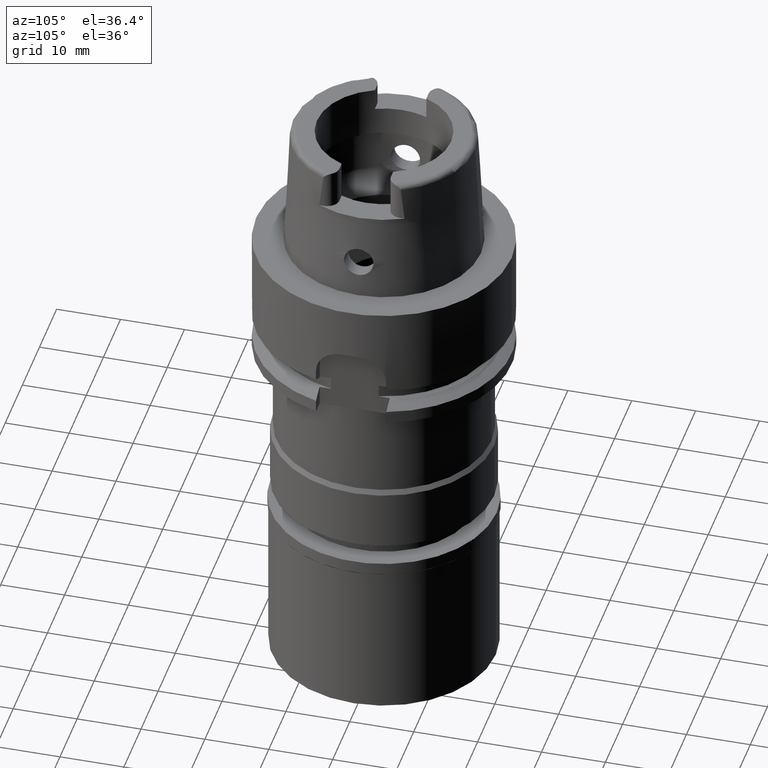
[diagram: clean part render]
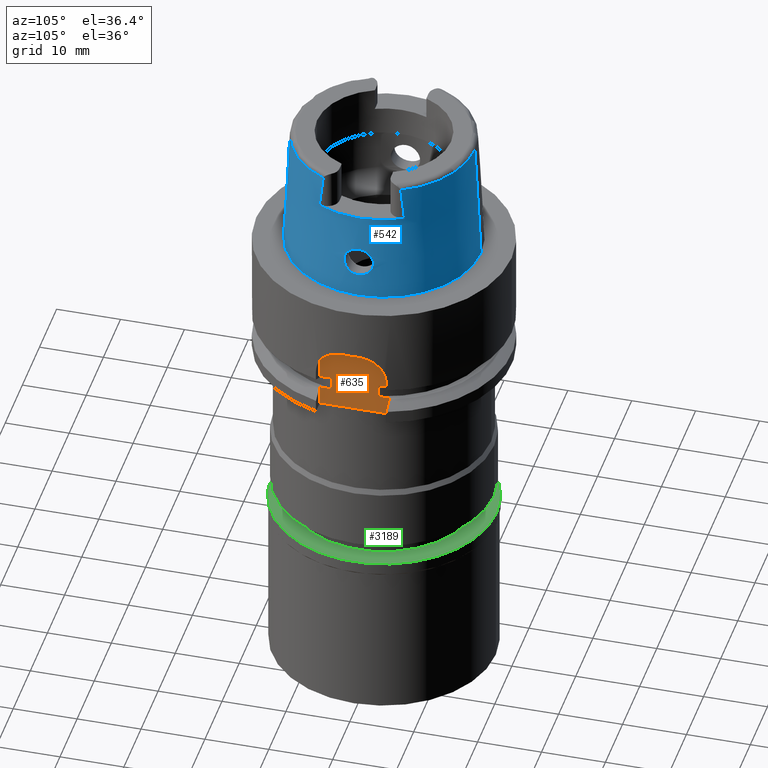
[diagram: same view with three faces highlighted in distinct colors, each labeled with its STEP entity id]
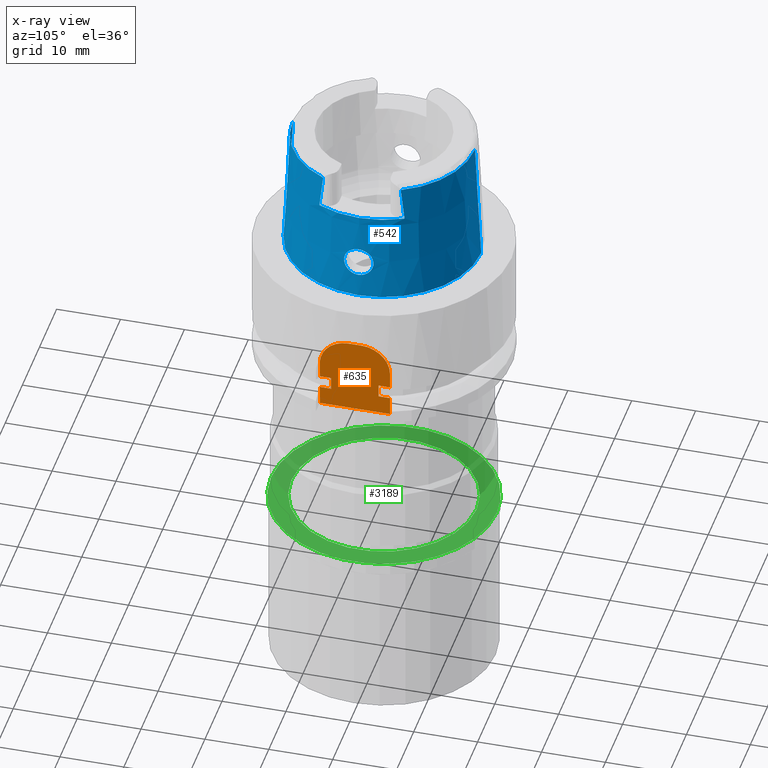
[diagram: x-ray of the same camera — body ghosted, the three highlighted faces saturated]
A machine part, auxiliary view with three faces highlighted in distinct colors.
The next image is the same camera in x-ray (body ghosted, the three faces saturated) — at least one of them is partly hidden behind the body in this view.
Their STEP definitions:

[orange] entity #635 — the highlighted planar face has unit normal (1, 0, 0).
#101 = VECTOR ( 'NONE', #1894, 1000.000000000000000 ) ;
#105 = EDGE_CURVE ( 'NONE', #713, #2883, #1663, .T. ) ;
#151 = CARTESIAN_POINT ( 'NONE',  ( 17.00000000000000000, 5.500000000000000000, -20.00000000000000000 ) ) ;
#152 = CIRCLE ( 'NONE', #4586, 4.500000000000000000 ) ;
#164 = VECTOR ( 'NONE', #1248, 1000.000000000000000 ) ;
#165 = ORIENTED_EDGE ( 'NONE', *, *, #4845, .F. ) ;
#181 = CARTESIAN_POINT ( 'NONE',  ( 17.00000000000000000, 5.500000000000000000, -15.00000000000000000 ) ) ;
#245 = VECTOR ( 'NONE', #2984, 1000.000000000000000 ) ;
#298 = LINE ( 'NONE', #322, #4198 ) ;
#310 = VECTOR ( 'NONE', #2494, 1000.000000000000000 ) ;
#322 = CARTESIAN_POINT ( 'NONE',  ( 17.00000000000000000, 5.500000000000000000, -17.00000000000000000 ) ) ;
#396 = CARTESIAN_POINT ( 'NONE',  ( 17.00000000000000000, 5.500000000000000000, -15.00000000000000000 ) ) ;
#467 = PLANE ( 'NONE',  #1408 ) ;
#499 = VERTEX_POINT ( 'NONE', #2851 ) ;
#530 = VECTOR ( 'NONE', #5295, 1000.000000000000000 ) ;
#583 = DIRECTION ( 'NONE',  ( 0.0000000000000000000, 0.0000000000000000000, -1.000000000000000000 ) ) ;
#612 = LINE ( 'NONE', #151, #101 ) ;
#635 = ADVANCED_FACE ( 'NONE', ( #4558 ), #467, .T. ) ;
#694 = EDGE_CURVE ( 'NONE', #5090, #1585, #3049, .T. ) ;
#713 = VERTEX_POINT ( 'NONE', #2965 ) ;
#725 = EDGE_CURVE ( 'NONE', #4905, #2472, #5182, .T. ) ;
#753 = DIRECTION ( 'NONE',  ( 0.0000000000000000000, 3.796962744218000027E-14, 1.000000000000000000 ) ) ;
#836 = DIRECTION ( 'NONE',  ( 0.0000000000000000000, -1.000000000000000000, 0.0000000000000000000 ) ) ;
#839 = ORIENTED_EDGE ( 'NONE', *, *, #921, .T. ) ;
#921 = EDGE_CURVE ( 'NONE', #4905, #713, #298, .T. ) ;
#973 = DIRECTION ( 'NONE',  ( 0.0000000000000000000, 1.000000000000000000, 0.0000000000000000000 ) ) ;
#1036 = EDGE_CURVE ( 'NONE', #3135, #4332, #1073, .T. ) ;
#1055 = ORIENTED_EDGE ( 'NONE', *, *, #2441, .F. ) ;
#1073 = LINE ( 'NONE', #3635, #530 ) ;
#1130 = EDGE_CURVE ( 'NONE', #3236, #3135, #4527, .T. ) ;
#1137 = EDGE_CURVE ( 'NONE', #5010, #2475, #152, .T. ) ;
#1148 = DIRECTION ( 'NONE',  ( 0.0000000000000000000, -1.000000000000000000, 0.0000000000000000000 ) ) ;
#1225 = CARTESIAN_POINT ( 'NONE',  ( 17.00000000000000000, -3.709447398197999846, -15.00000000000000000 ) ) ;
#1226 = CARTESIAN_POINT ( 'NONE',  ( 17.00000000000000000, -1.000000000000000000, -12.50000000000000000 ) ) ;
#1248 = DIRECTION ( 'NONE',  ( 0.0000000000000000000, 0.0000000000000000000, 1.000000000000000000 ) ) ;
#1263 = CARTESIAN_POINT ( 'NONE',  ( 17.00000000000000000, -3.709447398197999846, -15.00000000000000000 ) ) ;
#1349 = LINE ( 'NONE', #1225, #2252 ) ;
#1369 = CARTESIAN_POINT ( 'NONE',  ( 17.00000000000000000, 1.000000000000000000, -12.50000000000000000 ) ) ;
#1380 = LINE ( 'NONE', #3032, #2075 ) ;
#1408 = AXIS2_PLACEMENT_3D ( 'NONE', #4159, #3396, #2071 ) ;
#1420 = CARTESIAN_POINT ( 'NONE',  ( 17.00000000000000000, 3.709447398197999846, -15.00000000000000000 ) ) ;
#1585 = VERTEX_POINT ( 'NONE', #2547 ) ;
#1630 = DIRECTION ( 'NONE',  ( -1.000000000000000000, 0.0000000000000000000, 0.0000000000000000000 ) ) ;
#1643 = ORIENTED_EDGE ( 'NONE', *, *, #2448, .F. ) ;
#1663 = LINE ( 'NONE', #4067, #4968 ) ;
#1719 = LINE ( 'NONE', #2179, #245 ) ;
#1757 = VERTEX_POINT ( 'NONE', #396 ) ;
#1823 = CARTESIAN_POINT ( 'NONE',  ( 17.00000000000000000, 5.500000000000000000, -17.00000000000000000 ) ) ;
#1852 = DIRECTION ( 'NONE',  ( 0.0000000000000000000, -1.000000000000000000, 0.0000000000000000000 ) ) ;
#1894 = DIRECTION ( 'NONE',  ( 0.0000000000000000000, -1.000000000000000000, 0.0000000000000000000 ) ) ;
#2071 = DIRECTION ( 'NONE',  ( 0.0000000000000000000, 1.000000000000000000, 0.0000000000000000000 ) ) ;
#2075 = VECTOR ( 'NONE', #973, 1000.000000000000000 ) ;
#2091 = VECTOR ( 'NONE', #1852, 1000.000000000000000 ) ;
#2101 = ORIENTED_EDGE ( 'NONE', *, *, #3436, .F. ) ;
#2179 = CARTESIAN_POINT ( 'NONE',  ( 17.00000000000000000, -5.500000000000000000, -15.00000000000000000 ) ) ;
#2197 = EDGE_CURVE ( 'NONE', #3236, #5034, #1349, .T. ) ;
#2252 = VECTOR ( 'NONE', #3596, 1000.000000000000000 ) ;
#2349 = VECTOR ( 'NONE', #583, 1000.000000000000000 ) ;
#2426 = DIRECTION ( 'NONE',  ( 0.0000000000000000000, 0.0000000000000000000, -1.000000000000000000 ) ) ;
#2441 = EDGE_CURVE ( 'NONE', #499, #4332, #5087, .T. ) ;
#2448 = EDGE_CURVE ( 'NONE', #5034, #5010, #1719, .T. ) ;
#2472 = VERTEX_POINT ( 'NONE', #3767 ) ;
#2475 = VERTEX_POINT ( 'NONE', #4607 ) ;
#2494 = DIRECTION ( 'NONE',  ( 0.0000000000000000000, -3.730349362740999923E-14, -1.000000000000000000 ) ) ;
#2547 = CARTESIAN_POINT ( 'NONE',  ( 17.00000000000000000, 5.500000000000000000, -12.50000000000000000 ) ) ;
#2589 = ORIENTED_EDGE ( 'NONE', *, *, #1036, .T. ) ;
#2650 = DIRECTION ( 'NONE',  ( 0.0000000000000000000, 0.0000000000000000000, 1.000000000000000000 ) ) ;
#2726 = ORIENTED_EDGE ( 'NONE', *, *, #1130, .T. ) ;
#2783 = AXIS2_PLACEMENT_3D ( 'NONE', #1369, #4360, #2650 ) ;
#2851 = CARTESIAN_POINT ( 'NONE',  ( 17.00000000000000000, -5.500000000000000000, -20.00000000000000000 ) ) ;
#2883 = VERTEX_POINT ( 'NONE', #1420 ) ;
#2965 = CARTESIAN_POINT ( 'NONE',  ( 17.00000000000000000, 3.709447398197999846, -17.00000000000000000 ) ) ;
#2984 = DIRECTION ( 'NONE',  ( 0.0000000000000000000, 0.0000000000000000000, 1.000000000000000000 ) ) ;
#3021 = CARTESIAN_POINT ( 'NONE',  ( 17.00000000000000000, 5.500000000000000000, -17.00000000000000000 ) ) ;
#3032 = CARTESIAN_POINT ( 'NONE',  ( 17.00000000000000000, -1.000000000000000000, -8.000000000000000000 ) ) ;
#3049 = CIRCLE ( 'NONE', #2783, 4.500000000000000888 ) ;
#3133 = EDGE_CURVE ( 'NONE', #1585, #1757, #4925, .T. ) ;
#3135 = VERTEX_POINT ( 'NONE', #3575 ) ;
#3181 = ORIENTED_EDGE ( 'NONE', *, *, #694, .F. ) ;
#3200 = ORIENTED_EDGE ( 'NONE', *, *, #1137, .F. ) ;
#3236 = VERTEX_POINT ( 'NONE', #1263 ) ;
#3328 = CARTESIAN_POINT ( 'NONE',  ( 17.00000000000000000, -3.709447398197999846, -15.00000000000000000 ) ) ;
#3354 = CARTESIAN_POINT ( 'NONE',  ( 17.00000000000000000, -5.500000000000000000, -20.00000000000000000 ) ) ;
#3361 = ORIENTED_EDGE ( 'NONE', *, *, #725, .F. ) ;
#3396 = DIRECTION ( 'NONE',  ( 1.000000000000000000, 0.0000000000000000000, 0.0000000000000000000 ) ) ;
#3436 = EDGE_CURVE ( 'NONE', #2475, #5090, #1380, .T. ) ;
#3575 = CARTESIAN_POINT ( 'NONE',  ( 17.00000000000000000, -3.709447398197999846, -17.00000000000000000 ) ) ;
#3596 = DIRECTION ( 'NONE',  ( 0.0000000000000000000, -1.000000000000000000, 0.0000000000000000000 ) ) ;
#3617 = CARTESIAN_POINT ( 'NONE',  ( 17.00000000000000000, 1.000000000000000000, -8.000000000000000000 ) ) ;
#3635 = CARTESIAN_POINT ( 'NONE',  ( 17.00000000000000000, -3.709447398197999846, -17.00000000000000000 ) ) ;
#3686 = CARTESIAN_POINT ( 'NONE',  ( 17.00000000000000000, -5.500000000000000000, -12.50000000000000000 ) ) ;
#3767 = CARTESIAN_POINT ( 'NONE',  ( 17.00000000000000000, 5.500000000000000000, -20.00000000000000000 ) ) ;
#3787 = CARTESIAN_POINT ( 'NONE',  ( 17.00000000000000000, -5.500000000000000000, -17.00000000000000000 ) ) ;
#3792 = ORIENTED_EDGE ( 'NONE', *, *, #2197, .F. ) ;
#4067 = CARTESIAN_POINT ( 'NONE',  ( 17.00000000000000000, 3.709447398197999846, -17.00000000000000000 ) ) ;
#4159 = CARTESIAN_POINT ( 'NONE',  ( 17.00000000000000000, 0.0000000000000000000, 0.0000000000000000000 ) ) ;
#4198 = VECTOR ( 'NONE', #1148, 1000.000000000000000 ) ;
#4303 = ORIENTED_EDGE ( 'NONE', *, *, #3133, .F. ) ;
#4332 = VERTEX_POINT ( 'NONE', #3787 ) ;
#4360 = DIRECTION ( 'NONE',  ( -1.000000000000000000, 0.0000000000000000000, 0.0000000000000000000 ) ) ;
#4429 = CARTESIAN_POINT ( 'NONE',  ( 17.00000000000000000, -5.500000000000000000, -15.00000000000000000 ) ) ;
#4517 = CARTESIAN_POINT ( 'NONE',  ( 17.00000000000000000, 5.500000000000000000, -12.50000000000000000 ) ) ;
#4527 = LINE ( 'NONE', #3328, #310 ) ;
#4558 = FACE_OUTER_BOUND ( 'NONE', #5350, .T. ) ;
#4586 = AXIS2_PLACEMENT_3D ( 'NONE', #1226, #1630, #836 ) ;
#4607 = CARTESIAN_POINT ( 'NONE',  ( 17.00000000000000000, -1.000000000000000000, -8.000000000000000000 ) ) ;
#4819 = EDGE_CURVE ( 'NONE', #1757, #2883, #5186, .T. ) ;
#4845 = EDGE_CURVE ( 'NONE', #2472, #499, #612, .T. ) ;
#4857 = ORIENTED_EDGE ( 'NONE', *, *, #4819, .F. ) ;
#4905 = VERTEX_POINT ( 'NONE', #1823 ) ;
#4925 = LINE ( 'NONE', #4517, #5149 ) ;
#4968 = VECTOR ( 'NONE', #753, 1000.000000000000000 ) ;
#5010 = VERTEX_POINT ( 'NONE', #3686 ) ;
#5034 = VERTEX_POINT ( 'NONE', #4429 ) ;
#5083 = ORIENTED_EDGE ( 'NONE', *, *, #105, .T. ) ;
#5087 = LINE ( 'NONE', #3354, #164 ) ;
#5090 = VERTEX_POINT ( 'NONE', #3617 ) ;
#5149 = VECTOR ( 'NONE', #2426, 1000.000000000000000 ) ;
#5182 = LINE ( 'NONE', #3021, #2349 ) ;
#5186 = LINE ( 'NONE', #181, #2091 ) ;
#5295 = DIRECTION ( 'NONE',  ( 0.0000000000000000000, -1.000000000000000000, 0.0000000000000000000 ) ) ;
#5350 = EDGE_LOOP ( 'NONE', ( #3361, #839, #5083, #4857, #4303, #3181, #2101, #3200, #1643, #3792, #2726, #2589, #1055, #165 ) ) ;

[blue] entity #542 — the highlighted conical surface has half-angle 2.862 deg.
#16 = CARTESIAN_POINT ( 'NONE',  ( 15.01216022001266204, 0.2893533664339249523, 3.713389601571200682 ) ) ;
#18 = B_SPLINE_CURVE_WITH_KNOTS ( 'NONE', 3,
 ( #47, #1333, #1360, #3046, #922, #5054, #2612, #1305, #4299, #2234, #892, #166, #2553, #546, #5023, #2210, #4237, #2146, #3881, #78, #142, #1809, #3472, #5142, #3907, #4733, #984, #2642, #3127, #5224, #2309, #5269, #4399, #2360, #1940, #3155, #3988, #241, #4016, #1913, #1012, #4834, #2288, #5249, #3580, #4447, #269, #654, #218, #1506, #1088, #5174, #1067, #2742, #1425, #4377, #4418, #2333, #2694, #677, #4853, #3938, #4812, #3503, #3605, #4760, #628, #1886, #363, #1527, #3177, #1116, #2765, #3554, #702, #4113, #1480, #2716, #3076, #2667, #4352, #600, #2259, #194, #1864, #3532, #3965, #5199, #1453, #3099, #4787, #1039, #821, #3785 ),
 .UNSPECIFIED., .F., .F.,
 ( 4, 2, 2, 1, 1, 1, 2, 2, 2, 2, 1, 1, 1, 2, 2, 2, 2, 2, 1, 1, 1, 2, 2, 2, 2, 1, 1, 2, 2, 2, 2, 2, 2, 2, 2, 1, 1, 2, 2, 2, 2, 1, 2, 2, 2, 1, 1, 2, 2, 2, 2, 1, 1, 2, 2, 4 ),
 ( 0.0000000000000000000, 0.06249999999998293032, 0.09374999999997439548, 0.1093749999999702321, 0.1171874999999683031, 0.1210937499999673456, 0.1230468749999668460, 0.1249999999999663602, 0.1562499999999568123, 0.1718749999999521771, 0.1796874999999499012, 0.1835937499999487910, 0.1855468749999482081, 0.1865234374999479583, 0.1874999999999476807, 0.2187499999999349964, 0.2343749999999285016, 0.2421874999999250877, 0.2460937499999238387, 0.2480468749999242828, 0.2490234374999245326, 0.2495117187499246436, 0.2499999999999247546, 0.3124999999999354960, 0.3437499999999409361, 0.3593749999999436562, 0.3671874999999447664, 0.3710937499999454880, 0.3749999999999462097, 0.4374999999999556466, 0.4687499999999604205, 0.4843749999999625855, 0.4999999999999648059, 0.5624999999999723554, 0.5937499999999761302, 0.6093749999999782396, 0.6171874999999791278, 0.6210937499999794609, 0.6249999999999797939, 0.6562499999999821254, 0.6718749999999830136, 0.6796874999999835687, 0.6835937499999837907, 0.6874999999999841238, 0.7187499999999864553, 0.7343749999999876765, 0.7421874999999883427, 0.7460937499999887867, 0.7499999999999891198, 0.8124999999999921174, 0.8437499999999936717, 0.8593749999999945599, 0.8671874999999948930, 0.8710937499999950040, 0.8749999999999951150, 1.000000000000000000 ),
 .UNSPECIFIED. ) ;
#44 = CARTESIAN_POINT ( 'NONE',  ( 14.76681639866726137, 0.8982602938157991934, 8.117343626126395151 ) ) ;
#47 = CARTESIAN_POINT ( 'NONE',  ( 14.78499286951999991, -6.894269632583999541E-14, 8.300000000000000711 ) ) ;
#78 = CARTESIAN_POINT ( 'NONE',  ( 14.74981004312974875, -1.264879403766588473, 7.920971887863505145 ) ) ;
#81 = CARTESIAN_POINT ( 'NONE',  ( 12.88000000000000078, 6.263607505038087275, 17.57638009051866490 ) ) ;
#107 = CARTESIAN_POINT ( 'NONE',  ( 14.72880436649974989, 1.632282589548259111, 7.620387441107694393 ) ) ;
#120 = ORIENTED_EDGE ( 'NONE', *, *, #2336, .F. ) ;
#142 = CARTESIAN_POINT ( 'NONE',  ( 14.74944605433966949, -1.271765335749679871, 7.916408241682860947 ) ) ;
#155 = DIRECTION ( 'NONE',  ( 0.0000000000000000000, 1.000000000000000000, 0.0000000000000000000 ) ) ;
#161 = CARTESIAN_POINT ( 'NONE',  ( 14.77912388158673451, 0.5828724287265009130, 8.248662636701936890 ) ) ;
#166 = CARTESIAN_POINT ( 'NONE',  ( 14.76759299913051215, -0.8784831073322352246, 8.125625232293302247 ) ) ;
#194 = CARTESIAN_POINT ( 'NONE',  ( 14.95142600020052193, -1.189400720846008008, 4.029957730038552732 ) ) ;
#205 = EDGE_CURVE ( 'NONE', #3020, #268, #18, .T. ) ;
#218 = CARTESIAN_POINT ( 'NONE',  ( 14.70731350600274290, -2.271682167272943698, 6.367492034530670253 ) ) ;
#241 = CARTESIAN_POINT ( 'NONE',  ( 14.71548110503575657, -1.856541437910898429, 7.365967832220531086 ) ) ;
#251 = DIRECTION ( 'NONE',  ( 0.8882768779220027167, 0.4593083802296007434, 0.0000000000000000000 ) ) ;
#268 = VERTEX_POINT ( 'NONE', #4950 ) ;
#269 = CARTESIAN_POINT ( 'NONE',  ( 14.70192438103251753, -2.185226659930438409, 6.733826559296766767 ) ) ;
#277 = CARTESIAN_POINT ( 'NONE',  ( 0.0000000000000000000, 14.23797715755999782, 19.23995141520000018 ) ) ;
#315 = CARTESIAN_POINT ( 'NONE',  ( 14.90604601449832245, 1.540016639564700140, 4.291546508878167465 ) ) ;
#359 = FACE_OUTER_BOUND ( 'NONE', #2563, .T. ) ;
#363 = CARTESIAN_POINT ( 'NONE',  ( 14.82861031471268554, -1.972228873648485870, 4.816477904920541064 ) ) ;
#371 = CARTESIAN_POINT ( 'NONE',  ( 14.87667241757650061, 1.724874992532658746, 4.476676304557067887 ) ) ;
#384 = ORIENTED_EDGE ( 'NONE', *, *, #4807, .T. ) ;
#399 = CARTESIAN_POINT ( 'NONE',  ( 14.90245068916599180, 1.564191699375925726, 4.313537692884594321 ) ) ;
#421 = EDGE_CURVE ( 'NONE', #3781, #4601, #5243, .T. ) ;
#424 = CARTESIAN_POINT ( 'NONE',  ( 14.98370197116996394, 0.8376729955598246624, 3.857945346696494138 ) ) ;
#442 = DIRECTION ( 'NONE',  ( 0.0000000000000000000, 0.0000000000000000000, -1.000000000000000000 ) ) ;
#453 = CARTESIAN_POINT ( 'NONE',  ( 14.70695021764856136, 2.017596499484052064, 7.114341090365945419 ) ) ;
#541 = CARTESIAN_POINT ( 'NONE',  ( 14.74496202010786838, 1.355094966164470893, 7.858489928149036352 ) ) ;
#542 = ADVANCED_FACE ( 'NONE', ( #359, #3334 ), #866, .T. ) ;
#546 = CARTESIAN_POINT ( 'NONE',  ( 14.76254693289290820, -1.002442225211846116, 8.071429003387009971 ) ) ;
#571 = CARTESIAN_POINT ( 'NONE',  ( 14.74875868047693217, 1.284731771883913742, 7.907740015181810911 ) ) ;
#600 = CARTESIAN_POINT ( 'NONE',  ( 14.91210813687733250, -1.507810433923086002, 4.254667527267774751 ) ) ;
#628 = CARTESIAN_POINT ( 'NONE',  ( 14.81755852585635758, -2.021971490311698094, 4.903164490583439949 ) ) ;
#654 = CARTESIAN_POINT ( 'NONE',  ( 14.70278707067030766, -2.228686593601409971, 6.587636899538245494 ) ) ;
#663 = CARTESIAN_POINT ( 'NONE',  ( 0.0000000000000000000, -14.23797715755999782, 19.23995141520000018 ) ) ;
#677 = CARTESIAN_POINT ( 'NONE',  ( 14.77765630244427797, -2.177347927596944288, 5.257069683184754538 ) ) ;
#701 = EDGE_CURVE ( 'NONE', #3620, #4939, #4532, .T. ) ;
#702 = CARTESIAN_POINT ( 'NONE',  ( 14.85768541107385587, -1.828951198433338199, 4.603345904347506234 ) ) ;
#728 = CARTESIAN_POINT ( 'NONE',  ( 15.01500049748000620, 0.1430751052744992091, 3.700000000000000622 ) ) ;
#743 = B_SPLINE_CURVE_WITH_KNOTS ( 'NONE', 3,
 ( #4476, #728, #16, #3231, #1687, #3703, #4087, #2382, #424, #2461, #3676, #4174, #4907, #777, #5363, #828, #2433, #315, #399, #2812, #3321, #4989, #2085, #371, #4930, #1983, #3653, #2008, #4573, #2895, #4547, #4496, #748, #2406, #5341, #2838, #2035, #1622, #3286, #4958, #1217, #2868, #804, #4727, #3846, #1832, #1386, #2606, #1777, #3440, #3467, #1356, #453, #916, #5080, #2116, #5136, #3038, #979, #2635, #3791, #4294, #107, #1713, #4693, #3817, #2171, #4260, #1327, #3413, #541, #2517, #4320, #3380, #3496, #571, #2228, #2205, #3876, #5110, #945, #2143, #3901, #44, #4663, #3004, #161, #2977, #4205 ),
 .UNSPECIFIED., .F., .F.,
 ( 4, 2, 2, 1, 1, 2, 2, 2, 2, 2, 1, 2, 2, 2, 2, 2, 1, 2, 2, 2, 2, 2, 2, 2, 2, 1, 1, 2, 2, 2, 2, 1, 1, 1, 1, 1, 2, 2, 2, 2, 2, 1, 1, 2, 2, 2, 2, 1, 1, 2, 2, 4 ),
 ( 0.0000000000000000000, 0.06250000000006629419, 0.09375000000009940659, 0.1093750000001159350, 0.1171875000001241784, 0.1210937500001282724, 0.1250000000001323663, 0.1875000000001976752, 0.2187500000002303990, 0.2343750000002467748, 0.2421875000002550182, 0.2460937500002591538, 0.2500000000002632339, 0.2812500000002960410, 0.3125000000003287925, 0.3437500000003615996, 0.3593750000003779754, 0.3671875000003861911, 0.3750000000003944067, 0.4375000000004614087, 0.4687500000004949929, 0.4843750000005115353, 0.5000000000005281331, 0.5625000000005953016, 0.5937500000006289413, 0.6093750000006457057, 0.6171875000006540324, 0.6210937500006581402, 0.6250000000006622480, 0.6875000000007237544, 0.7187500000007543965, 0.7343750000007697176, 0.7421875000007773782, 0.7460937500007810419, 0.7480468750007829293, 0.7490234375007838175, 0.7495117187507842615, 0.7500000000007845946, 0.7812500000006845635, 0.7968750000006342704, 0.8046875000006091794, 0.8085937500005966339, 0.8105468750005903056, 0.8115234375005871970, 0.8125000000005841994, 0.8437500000004873879, 0.8593750000004388712, 0.8671875000004145573, 0.8710937500004021228, 0.8730468750003961276, 0.8750000000003901324, 1.000000000000000000 ),
 .UNSPECIFIED. ) ;
#748 = CARTESIAN_POINT ( 'NONE',  ( 14.79464909721703236, 2.115596301992205053, 5.097406469587562050 ) ) ;
#777 = CARTESIAN_POINT ( 'NONE',  ( 14.93864805869093182, 1.297539983358774185, 4.099464658858130939 ) ) ;
#804 = CARTESIAN_POINT ( 'NONE',  ( 14.70880781479653088, 2.286020561455561761, 6.294368908724434775 ) ) ;
#821 = CARTESIAN_POINT ( 'NONE',  ( 15.01500049748000976, -0.2875960007100282212, 3.700000000000001066 ) ) ;
#828 = CARTESIAN_POINT ( 'NONE',  ( 14.91762828717708089, 1.459184968837462293, 4.221663230614431050 ) ) ;
#830 = ORIENTED_EDGE ( 'NONE', *, *, #3519, .F. ) ;
#866 = CONICAL_SURFACE ( 'NONE', #1999, 14.71899189528999941, 0.04996004983832824653 ) ;
#892 = CARTESIAN_POINT ( 'NONE',  ( 14.76781679684914117, -0.8726978007007581972, 8.128009456426799062 ) ) ;
#916 = CARTESIAN_POINT ( 'NONE',  ( 14.71337081760091614, 1.896371880277076372, 7.303605238097965469 ) ) ;
#922 = CARTESIAN_POINT ( 'NONE',  ( 14.77731909185203740, -0.5814257040502311957, 8.226675854615617567 ) ) ;
#945 = CARTESIAN_POINT ( 'NONE',  ( 14.76436961850112084, 0.9582247446260943047, 8.090957295833154816 ) ) ;
#964 = CARTESIAN_POINT ( 'NONE',  ( 12.88000000000000078, -6.460694175626308322, 15.83011802550652547 ) ) ;
#979 = CARTESIAN_POINT ( 'NONE',  ( 14.72730016313639467, 1.657340666532570950, 7.594814311453158773 ) ) ;
#984 = CARTESIAN_POINT ( 'NONE',  ( 14.73107779971944709, -1.595555218196662350, 7.656673887208425455 ) ) ;
#1012 = CARTESIAN_POINT ( 'NONE',  ( 14.70531931673658654, -2.060534826553608756, 7.022429825263164282 ) ) ;
#1023 = LINE ( 'NONE', #1464, #2275 ) ;
#1039 = CARTESIAN_POINT ( 'NONE',  ( 15.00350694506702354, -0.5889686883290076169, 3.754704646528222334 ) ) ;
#1043 = CARTESIAN_POINT ( 'NONE',  ( 12.88000000001000167, 6.659963896840999986, 14.00000000000000000 ) ) ;
#1067 = CARTESIAN_POINT ( 'NONE',  ( 14.71779330431683164, -2.299087326542744503, 6.074384873257435480 ) ) ;
#1088 = CARTESIAN_POINT ( 'NONE',  ( 14.71324046936361363, -2.292924377777295852, 6.183994366508828833 ) ) ;
#1100 = DIRECTION ( 'NONE',  ( 0.0000000000000000000, 0.0000000000000000000, -1.000000000000000000 ) ) ;
#1116 = CARTESIAN_POINT ( 'NONE',  ( 14.83806286382643513, -1.927573503190870507, 4.745179451423327421 ) ) ;
#1203 = DIRECTION ( 'NONE',  ( 0.0000000000000000000, -1.000000000000000000, 0.0000000000000000000 ) ) ;
#1217 = CARTESIAN_POINT ( 'NONE',  ( 14.72320550169001585, 2.300013725363203587, 5.964480279255669259 ) ) ;
#1305 = CARTESIAN_POINT ( 'NONE',  ( 14.76993079698422129, -0.8163353217984627985, 8.150420295327302611 ) ) ;
#1327 = CARTESIAN_POINT ( 'NONE',  ( 14.74145168468205114, 1.418516755568045351, 7.810689925897598584 ) ) ;
#1333 = CARTESIAN_POINT ( 'NONE',  ( 14.78499286951999636, -0.1391751645937034376, 8.299999999999998934 ) ) ;
#1348 = ORIENTED_EDGE ( 'NONE', *, *, #701, .T. ) ;
#1356 = CARTESIAN_POINT ( 'NONE',  ( 14.70428643462595275, 2.078679078809318792, 6.992017658392447821 ) ) ;
#1360 = CARTESIAN_POINT ( 'NONE',  ( 14.78353119758323686, -0.2843038317432334261, 8.287342556898803281 ) ) ;
#1386 = CARTESIAN_POINT ( 'NONE',  ( 14.70255720352484552, 2.173861023184219476, 6.752934735267892563 ) ) ;
#1425 = CARTESIAN_POINT ( 'NONE',  ( 14.72824112767558447, -2.300101275662259415, 5.864734148846234341 ) ) ;
#1442 = CARTESIAN_POINT ( 'NONE',  ( 0.0000000000000000000, 0.0000000000000000000, 19.23995141520000018 ) ) ;
#1453 = CARTESIAN_POINT ( 'NONE',  ( 14.97807173541244019, -0.9089440474971622885, 3.887208274512268247 ) ) ;
#1464 = CARTESIAN_POINT ( 'NONE',  ( 0.0000000000000000000, -14.23797715755999782, 19.23995141520000018 ) ) ;
#1480 = CARTESIAN_POINT ( 'NONE',  ( 14.87711229089646459, -1.720348953021965333, 4.472617882919096566 ) ) ;
#1500 = AXIS2_PLACEMENT_3D ( 'NONE', #2156, #3426, #3829 ) ;
#1506 = CARTESIAN_POINT ( 'NONE',  ( 14.70936105125951343, -2.282325784994311935, 6.293961779147610791 ) ) ;
#1527 = CARTESIAN_POINT ( 'NONE',  ( 14.83206995780430226, -1.956182390927947878, 4.789988988161035799 ) ) ;
#1562 = EDGE_CURVE ( 'NONE', #268, #3020, #743, .T. ) ;
#1572 = AXIS2_PLACEMENT_3D ( 'NONE', #1442, #1877, #155 ) ;
#1577 = VERTEX_POINT ( 'NONE', #1805 ) ;
#1622 = CARTESIAN_POINT ( 'NONE',  ( 14.73131639658089931, 2.293624900998096905, 5.825089968767161785 ) ) ;
#1642 = CARTESIAN_POINT ( 'NONE',  ( 12.88000000001000167, -6.659963896840999986, 14.00000000000000000 ) ) ;
#1684 = DIRECTION ( 'NONE',  ( 0.0000000000000000000, 0.0000000000000000000, 1.000000000000000000 ) ) ;
#1687 = CARTESIAN_POINT ( 'NONE',  ( 15.00008904077646754, 0.5827698460365005051, 3.773748640410090616 ) ) ;
#1713 = CARTESIAN_POINT ( 'NONE',  ( 14.72892080486414024, 1.630345656328348269, 7.622335674669672656 ) ) ;
#1730 = EDGE_CURVE ( 'NONE', #5264, #1577, #5219, .T. ) ;
#1755 = CARTESIAN_POINT ( 'NONE',  ( 12.87997705758999878, 6.068458167862999630, 19.23995141520000018 ) ) ;
#1777 = CARTESIAN_POINT ( 'NONE',  ( 14.70295108019530694, 2.139963180798529763, 6.843001021137550488 ) ) ;
#1805 = CARTESIAN_POINT ( 'NONE',  ( 0.0000000000000000000, 15.20000663301000010, 7.958078640512999903E-13 ) ) ;
#1809 = CARTESIAN_POINT ( 'NONE',  ( 14.74920257541553603, -1.276361168139605207, 7.913350408699299621 ) ) ;
#1832 = CARTESIAN_POINT ( 'NONE',  ( 14.70267207233930762, 2.191732212413337155, 6.698399526843317631 ) ) ;
#1864 = CARTESIAN_POINT ( 'NONE',  ( 14.95813937024585805, -1.126008546045731640, 3.993239773245215396 ) ) ;
#1877 = DIRECTION ( 'NONE',  ( 0.0000000000000000000, 0.0000000000000000000, -1.000000000000000000 ) ) ;
#1886 = CARTESIAN_POINT ( 'NONE',  ( 14.82185114679025872, -2.003073250979758413, 4.868919689153073271 ) ) ;
#1893 = CARTESIAN_POINT ( 'NONE',  ( 12.88000000001000167, -6.659963896840999986, 14.00000000000000000 ) ) ;
#1913 = CARTESIAN_POINT ( 'NONE',  ( 14.70731361989263242, -2.013633668384528619, 7.113528412596716421 ) ) ;
#1940 = CARTESIAN_POINT ( 'NONE',  ( 14.72894182145149955, -1.629996384534755594, 7.622686595570487000 ) ) ;
#1983 = CARTESIAN_POINT ( 'NONE',  ( 14.85052521356301014, 1.867322143047314142, 4.655170250211140726 ) ) ;
#1999 = AXIS2_PLACEMENT_3D ( 'NONE', #4188, #442, #1203 ) ;
#2008 = CARTESIAN_POINT ( 'NONE',  ( 14.82500716780841898, 1.988595870628028450, 4.841884753570882438 ) ) ;
#2035 = CARTESIAN_POINT ( 'NONE',  ( 14.73838547329297199, 2.283671759685504732, 5.717019230277895936 ) ) ;
#2085 = CARTESIAN_POINT ( 'NONE',  ( 14.88524143168100089, 1.673873723300556726, 4.420805401662719625 ) ) ;
#2113 = CARTESIAN_POINT ( 'NONE',  ( 0.0000000000000000000, 0.0000000000000000000, 7.958078640512999903E-13 ) ) ;
#2116 = CARTESIAN_POINT ( 'NONE',  ( 14.72033793450682815, 1.774700794499789902, 7.463594222355022012 ) ) ;
#2143 = CARTESIAN_POINT ( 'NONE',  ( 14.76532955384807977, 0.9352405846729348049, 8.101378779126171992 ) ) ;
#2146 = CARTESIAN_POINT ( 'NONE',  ( 14.75229771445142646, -1.217077475354939375, 7.951800474386328865 ) ) ;
#2150 = CARTESIAN_POINT ( 'NONE',  ( 0.0000000000000000000, -15.20000663301000010, 4.547473508865000658E-13 ) ) ;
#2156 = CARTESIAN_POINT ( 'NONE',  ( 0.0000000000000000000, 0.0000000000000000000, 19.23995141520000018 ) ) ;
#2171 = CARTESIAN_POINT ( 'NONE',  ( 14.73565776523900261, 1.519451493206869008, 7.727044870694370182 ) ) ;
#2205 = CARTESIAN_POINT ( 'NONE',  ( 14.75630775068626654, 1.137750949081341334, 8.000307400470752839 ) ) ;
#2210 = CARTESIAN_POINT ( 'NONE',  ( 14.75627702756432313, -1.137255355142184898, 7.999584253628077235 ) ) ;
#2228 = CARTESIAN_POINT ( 'NONE',  ( 14.75280422284467896, 1.208759587189378149, 7.958769017364435427 ) ) ;
#2234 = CARTESIAN_POINT ( 'NONE',  ( 14.76817650517732616, -0.8633088825368182562, 8.131835704580172575 ) ) ;
#2259 = CARTESIAN_POINT ( 'NONE',  ( 14.92936888569900589, -1.380013835108615972, 4.153781081332927450 ) ) ;
#2275 = VECTOR ( 'NONE', #3458, 1000.000000000000227 ) ;
#2288 = CARTESIAN_POINT ( 'NONE',  ( 14.70375667495221528, -2.105285467915817499, 6.926394899580705200 ) ) ;
#2309 = CARTESIAN_POINT ( 'NONE',  ( 14.72904708513385330, -1.628305426957599389, 7.624384036443298207 ) ) ;
#2333 = CARTESIAN_POINT ( 'NONE',  ( 14.76156747516672141, -2.228555448629745417, 5.425854109988209828 ) ) ;
#2336 = EDGE_CURVE ( 'NONE', #3781, #1577, #3979, .T. ) ;
#2360 = CARTESIAN_POINT ( 'NONE',  ( 14.72894462281647243, -1.629950868194543379, 7.622732315667733793 ) ) ;
#2376 = CARTESIAN_POINT ( 'NONE',  ( 12.88000000001000167, 6.659963896840999986, 14.00000000000000000 ) ) ;
#2382 = CARTESIAN_POINT ( 'NONE',  ( 14.98573232576574554, 0.8105693354437724096, 3.847412294911899178 ) ) ;
#2390 = CARTESIAN_POINT ( 'NONE',  ( 12.88000213910999925, -6.068393236650000411, 19.24000441260999850 ) ) ;
#2406 = CARTESIAN_POINT ( 'NONE',  ( 14.77581109698739503, 2.186691380882097135, 5.268262594856016889 ) ) ;
#2433 = CARTESIAN_POINT ( 'NONE',  ( 14.91310261679775984, 1.491583497069575381, 4.248704194854606264 ) ) ;
#2461 = CARTESIAN_POINT ( 'NONE',  ( 14.98232621177172241, 0.8557197520343385877, 3.865090659721668320 ) ) ;
#2517 = CARTESIAN_POINT ( 'NONE',  ( 14.74608412550234782, 1.334534414115865264, 7.873381594103698866 ) ) ;
#2532 = ORIENTED_EDGE ( 'NONE', *, *, #4143, .F. ) ;
#2553 = CARTESIAN_POINT ( 'NONE',  ( 14.76520972065401516, -0.9396893684571812067, 8.100208224557787773 ) ) ;
#2563 = EDGE_LOOP ( 'NONE', ( #830, #1348, #384, #2981, #120, #3208, #2532, #4620 ) ) ;
#2606 = CARTESIAN_POINT ( 'NONE',  ( 14.70277947450465383, 2.150508513726161475, 6.816065606459268622 ) ) ;
#2612 = CARTESIAN_POINT ( 'NONE',  ( 14.77224891732143064, -0.7505105687267040748, 8.174748223833573135 ) ) ;
#2635 = CARTESIAN_POINT ( 'NONE',  ( 14.72810539020115783, 1.643918228254670710, 7.608597534853468680 ) ) ;
#2642 = CARTESIAN_POINT ( 'NONE',  ( 14.72981240607873588, -1.616025509547364569, 7.636628472870492068 ) ) ;
#2667 = CARTESIAN_POINT ( 'NONE',  ( 14.89011969236890742, -1.642682500484922148, 4.390129400990236519 ) ) ;
#2694 = CARTESIAN_POINT ( 'NONE',  ( 14.77214371639474777, -2.195485229828060270, 5.313435852767184997 ) ) ;
#2716 = CARTESIAN_POINT ( 'NONE',  ( 14.88469534007314721, -1.675461262738257906, 4.424102288119217796 ) ) ;
#2742 = CARTESIAN_POINT ( 'NONE',  ( 14.71959267638316682, -2.299973885356422887, 6.035955489538434193 ) ) ;
#2758 = ORIENTED_EDGE ( 'NONE', *, *, #205, .F. ) ;
#2765 = CARTESIAN_POINT ( 'NONE',  ( 14.83944483980183549, -1.920882048689644739, 4.734969843056110683 ) ) ;
#2812 = CARTESIAN_POINT ( 'NONE',  ( 14.89875482755973479, 1.588260025366435180, 4.336403346825933980 ) ) ;
#2829 = AXIS2_PLACEMENT_3D ( 'NONE', #2113, #1684, #3789 ) ;
#2838 = CARTESIAN_POINT ( 'NONE',  ( 14.74370814555743081, 2.273483515794938015, 5.643635403703655129 ) ) ;
#2868 = CARTESIAN_POINT ( 'NONE',  ( 14.71400032038996741, 2.299944260809296814, 6.146468412650635038 ) ) ;
#2895 = CARTESIAN_POINT ( 'NONE',  ( 14.80653981904649363, 2.068450220679963980, 4.992976816702466181 ) ) ;
#2899 = B_SPLINE_CURVE_WITH_KNOTS ( 'NONE', 3,
 ( #3973, #4708, #964, #1893 ),
 .UNSPECIFIED., .F., .F.,
 ( 4, 4 ),
 ( 0.0000000000000000000, 1.000000000000000000 ),
 .UNSPECIFIED. ) ;
#2977 = CARTESIAN_POINT ( 'NONE',  ( 14.78499286951999991, 0.2788168898852023125, 8.300000000000004263 ) ) ;
#2981 = ORIENTED_EDGE ( 'NONE', *, *, #1730, .T. ) ;
#3004 = CARTESIAN_POINT ( 'NONE',  ( 14.76720249984729350, 0.8884731097342386530, 8.121471533359297723 ) ) ;
#3020 = VERTEX_POINT ( 'NONE', #3150 ) ;
#3038 = CARTESIAN_POINT ( 'NONE',  ( 14.72572286228403726, 1.683694620611634107, 7.567163154937026626 ) ) ;
#3041 = VERTEX_POINT ( 'NONE', #2376 ) ;
#3046 = CARTESIAN_POINT ( 'NONE',  ( 14.77914618177298145, -0.5065859453372497656, 8.244785477573039145 ) ) ;
#3051 = AXIS2_PLACEMENT_3D ( 'NONE', #4940, #1100, #251 ) ;
#3058 = ORIENTED_EDGE ( 'NONE', *, *, #1562, .F. ) ;
#3076 = CARTESIAN_POINT ( 'NONE',  ( 14.88794939460838052, -1.655844030501469000, 4.403669930870154126 ) ) ;
#3099 = CARTESIAN_POINT ( 'NONE',  ( 14.97931076442335119, -0.8937533443297371871, 3.880737600892859351 ) ) ;
#3127 = CARTESIAN_POINT ( 'NONE',  ( 14.72949367580120850, -1.621144006457274855, 7.631537923953627178 ) ) ;
#3150 = CARTESIAN_POINT ( 'NONE',  ( 14.78499286951999991, -6.894269632583999541E-14, 8.300000000000000711 ) ) ;
#3155 = CARTESIAN_POINT ( 'NONE',  ( 14.72899916275023458, -1.629042049980843121, 7.623645260268606449 ) ) ;
#3177 = CARTESIAN_POINT ( 'NONE',  ( 14.83564968959150221, -1.939151492463307092, 4.763146852447263768 ) ) ;
#3208 = ORIENTED_EDGE ( 'NONE', *, *, #421, .T. ) ;
#3231 = CARTESIAN_POINT ( 'NONE',  ( 15.00363938761063665, 0.5093508491644741509, 3.755865459988469102 ) ) ;
#3286 = CARTESIAN_POINT ( 'NONE',  ( 14.72911252629097589, 2.296054819134858871, 5.860780791009330137 ) ) ;
#3321 = CARTESIAN_POINT ( 'NONE',  ( 14.89626857842802110, 1.604276696164551153, 4.351843449555748755 ) ) ;
#3334 = FACE_BOUND ( 'NONE', #3651, .T. ) ;
#3380 = CARTESIAN_POINT ( 'NONE',  ( 14.74806451710669108, 1.297728717047154534, 7.898926345216174205 ) ) ;
#3383 = VECTOR ( 'NONE', #3566, 1000.000000000000227 ) ;
#3413 = CARTESIAN_POINT ( 'NONE',  ( 14.74279448128194403, 1.394511430280925390, 7.829318614194543891 ) ) ;
#3426 = DIRECTION ( 'NONE',  ( 0.0000000000000000000, 0.0000000000000000000, -1.000000000000000000 ) ) ;
#3440 = CARTESIAN_POINT ( 'NONE',  ( 14.70308244992224544, 2.132813531708690924, 6.860929483623725567 ) ) ;
#3458 = DIRECTION ( 'NONE',  ( 0.0000000000000000000, -0.04993926899656212642, -0.9987522562738413434 ) ) ;
#3467 = CARTESIAN_POINT ( 'NONE',  ( 14.70317382066913936, 2.128410065513433480, 6.871739186466495397 ) ) ;
#3472 = CARTESIAN_POINT ( 'NONE',  ( 14.74916519303438456, -1.277068790019607381, 7.912881938175201135 ) ) ;
#3496 = CARTESIAN_POINT ( 'NONE',  ( 14.74847049888944461, 1.290135700418861608, 7.904093212558053416 ) ) ;
#3503 = CARTESIAN_POINT ( 'NONE',  ( 14.79076021712680422, -2.130234046192172048, 5.132724886786048657 ) ) ;
#3519 = EDGE_CURVE ( 'NONE', #3620, #4531, #2899, .T. ) ;
#3532 = CARTESIAN_POINT ( 'NONE',  ( 14.96725092313111283, -1.032131343066611917, 3.944288358250908733 ) ) ;
#3554 = CARTESIAN_POINT ( 'NONE',  ( 14.84908589022428593, -1.873854708258256174, 4.664195492784434904 ) ) ;
#3566 = DIRECTION ( 'NONE',  ( 0.0000000000000000000, 0.04993926899656212642, -0.9987522562738413434 ) ) ;
#3580 = CARTESIAN_POINT ( 'NONE',  ( 14.70335184478462587, -2.120650639250119429, 6.890450159687937948 ) ) ;
#3605 = CARTESIAN_POINT ( 'NONE',  ( 14.79801684031628817, -2.103023114383059333, 5.066544351353877929 ) ) ;
#3620 = VERTEX_POINT ( 'NONE', #2390 ) ;
#3651 = EDGE_LOOP ( 'NONE', ( #3058, #2758 ) ) ;
#3653 = CARTESIAN_POINT ( 'NONE',  ( 14.83340470862698268, 1.949785832016451392, 4.777791240785809634 ) ) ;
#3676 = CARTESIAN_POINT ( 'NONE',  ( 14.98146770921740512, 0.8667539747353103508, 3.869555339000164462 ) ) ;
#3703 = CARTESIAN_POINT ( 'NONE',  ( 14.99369841647495072, 0.6924125021944659286, 3.806368563503401692 ) ) ;
#3781 = VERTEX_POINT ( 'NONE', #277 ) ;
#3785 = CARTESIAN_POINT ( 'NONE',  ( 15.01500049747999910, 0.0000000000000000000, 3.700000000000000178 ) ) ;
#3789 = DIRECTION ( 'NONE',  ( 0.0000000000000000000, -1.000000000000000000, 0.0000000000000000000 ) ) ;
#3791 = CARTESIAN_POINT ( 'NONE',  ( 14.72851214789322327, 1.637145362343885413, 7.615477766786693969 ) ) ;
#3817 = CARTESIAN_POINT ( 'NONE',  ( 14.73066786416111817, 1.603000317933520824, 7.651077612683999440 ) ) ;
#3829 = DIRECTION ( 'NONE',  ( 0.9046233376276806570, -0.4262119390858908896, 0.0000000000000000000 ) ) ;
#3846 = CARTESIAN_POINT ( 'NONE',  ( 14.70330899236449795, 2.224630396801055898, 6.588920671847851018 ) ) ;
#3876 = CARTESIAN_POINT ( 'NONE',  ( 14.76093390894884649, 1.037467014537466925, 8.053068173094871440 ) ) ;
#3881 = CARTESIAN_POINT ( 'NONE',  ( 14.75065074313393509, -1.248868060869615881, 7.931459680125209744 ) ) ;
#3901 = CARTESIAN_POINT ( 'NONE',  ( 14.76638066694299134, 0.9092309431077889581, 8.112678546864868778 ) ) ;
#3907 = CARTESIAN_POINT ( 'NONE',  ( 14.73733807563706932, -1.491314417828851546, 7.752621450040366291 ) ) ;
#3938 = CARTESIAN_POINT ( 'NONE',  ( 14.78748928398730023, -2.142316532915687244, 5.162992107276672904 ) ) ;
#3965 = CARTESIAN_POINT ( 'NONE',  ( 14.97156707402805154, -0.9854923688498374856, 3.921342714356493619 ) ) ;
#3973 = CARTESIAN_POINT ( 'NONE',  ( 12.88000213910999925, -6.068393236650000411, 19.24000441260999850 ) ) ;
#3979 = LINE ( 'NONE', #4526, #3383 ) ;
#3988 = CARTESIAN_POINT ( 'NONE',  ( 14.72139656836040089, -1.755536182034362458, 7.496577194820421397 ) ) ;
#4016 = CARTESIAN_POINT ( 'NONE',  ( 14.70905020438623545, -1.978083123281076938, 7.175942479344104896 ) ) ;
#4087 = CARTESIAN_POINT ( 'NONE',  ( 14.99023682831161253, 0.7471114933519001911, 3.824126365682919193 ) ) ;
#4113 = CARTESIAN_POINT ( 'NONE',  ( 14.87062923972595918, -1.757270199609715755, 4.515605263802099145 ) ) ;
#4143 = EDGE_CURVE ( 'NONE', #3041, #4601, #5332, .T. ) ;
#4174 = CARTESIAN_POINT ( 'NONE',  ( 14.97210850634390766, 0.9853819055817087946, 3.918272228770887988 ) ) ;
#4188 = CARTESIAN_POINT ( 'NONE',  ( 0.0000000000000000000, 0.0000000000000000000, 9.619975707601000181 ) ) ;
#4205 = CARTESIAN_POINT ( 'NONE',  ( 14.78499286951999991, -6.894269632583999541E-14, 8.300000000000000711 ) ) ;
#4237 = CARTESIAN_POINT ( 'NONE',  ( 14.75365038353923275, -1.190255834744119223, 7.968174987239907914 ) ) ;
#4260 = CARTESIAN_POINT ( 'NONE',  ( 14.73772998273450341, 1.484162581488450705, 7.757956940885329722 ) ) ;
#4294 = CARTESIAN_POINT ( 'NONE',  ( 14.72868736065256989, 1.634229465902708567, 7.618423913632416777 ) ) ;
#4299 = CARTESIAN_POINT ( 'NONE',  ( 14.76871178542761776, -0.8492224074628730301, 8.137522045872220389 ) ) ;
#4320 = CARTESIAN_POINT ( 'NONE',  ( 14.74746033643023324, 1.309005439425444228, 7.891202895969343878 ) ) ;
#4352 = CARTESIAN_POINT ( 'NONE',  ( 14.89105283506985344, -1.636995529918401138, 4.384338660573121160 ) ) ;
#4377 = CARTESIAN_POINT ( 'NONE',  ( 14.73755418668843831, -2.287952429699008583, 5.721217248144938594 ) ) ;
#4399 = CARTESIAN_POINT ( 'NONE',  ( 14.72895003268738812, -1.629863316642726323, 7.622820256034620101 ) ) ;
#4418 = CARTESIAN_POINT ( 'NONE',  ( 14.75511522217609972, -2.246327373719559706, 5.500375274928719804 ) ) ;
#4447 = CARTESIAN_POINT ( 'NONE',  ( 14.70329739057936358, -2.122890205493852100, 6.885115709864829014 ) ) ;
#4476 = CARTESIAN_POINT ( 'NONE',  ( 15.01500049747999910, 0.0000000000000000000, 3.700000000000000178 ) ) ;
#4496 = CARTESIAN_POINT ( 'NONE',  ( 14.79652085849358478, 2.108366304255377521, 5.080671857731089425 ) ) ;
#4526 = CARTESIAN_POINT ( 'NONE',  ( 0.0000000000000000000, 14.23797715755999782, 19.23995141520000018 ) ) ;
#4531 = VERTEX_POINT ( 'NONE', #1642 ) ;
#4532 = CIRCLE ( 'NONE', #1500, 14.23797715756000315 ) ;
#4547 = CARTESIAN_POINT ( 'NONE',  ( 14.80051623934103944, 2.092637124200105614, 5.045409735799387008 ) ) ;
#4573 = CARTESIAN_POINT ( 'NONE',  ( 14.81265492405476891, 2.042543435712479649, 4.941958210465926982 ) ) ;
#4587 = CARTESIAN_POINT ( 'NONE',  ( 12.87997705758999878, 6.068458167862999630, 19.23995141520000018 ) ) ;
#4601 = VERTEX_POINT ( 'NONE', #4587 ) ;
#4620 = ORIENTED_EDGE ( 'NONE', *, *, #5050, .T. ) ;
#4624 = CIRCLE ( 'NONE', #3051, 14.49998341749000730 ) ;
#4663 = CARTESIAN_POINT ( 'NONE',  ( 14.76710360974646541, 0.8909861265049224821, 8.120414890751305848 ) ) ;
#4693 = CARTESIAN_POINT ( 'NONE',  ( 14.72897693198733471, 1.629412071234969561, 7.623273852554459218 ) ) ;
#4708 = CARTESIAN_POINT ( 'NONE',  ( 12.88000000000000078, -6.263516045013309608, 17.57678616304319164 ) ) ;
#4727 = CARTESIAN_POINT ( 'NONE',  ( 14.70427651557626980, 2.242767741313319352, 6.515391718966896839 ) ) ;
#4733 = CARTESIAN_POINT ( 'NONE',  ( 14.73233366589074400, -1.575114003148579078, 7.676437006593659795 ) ) ;
#4736 = CARTESIAN_POINT ( 'NONE',  ( 12.88000000000000078, 6.460775656491086316, 15.82979272914199598 ) ) ;
#4760 = CARTESIAN_POINT ( 'NONE',  ( 14.80532113609779898, -2.074184084526007332, 5.003291540669694726 ) ) ;
#4787 = CARTESIAN_POINT ( 'NONE',  ( 14.97980149321523768, -0.8876748246078827176, 3.878177825851863325 ) ) ;
#4807 = EDGE_CURVE ( 'NONE', #4939, #5264, #1023, .T. ) ;
#4812 = CARTESIAN_POINT ( 'NONE',  ( 14.78951386720008365, -2.134870804772785124, 5.144179349037522719 ) ) ;
#4834 = CARTESIAN_POINT ( 'NONE',  ( 14.70447480855466260, -2.082380157777739882, 6.977506691562940233 ) ) ;
#4853 = CARTESIAN_POINT ( 'NONE',  ( 14.78448046734756893, -2.153271256402631284, 5.191214963528755888 ) ) ;
#4907 = CARTESIAN_POINT ( 'NONE',  ( 14.96044014635765684, 1.107343955718683715, 3.978523379034767604 ) ) ;
#4930 = CARTESIAN_POINT ( 'NONE',  ( 14.85941113220650145, 1.821132911037870672, 4.593165346852307707 ) ) ;
#4939 = VERTEX_POINT ( 'NONE', #663 ) ;
#4940 = CARTESIAN_POINT ( 'NONE',  ( 0.0000000000000000000, 0.0000000000000000000, 14.00000000000000000 ) ) ;
#4950 = CARTESIAN_POINT ( 'NONE',  ( 15.01500049747999910, 0.0000000000000000000, 3.700000000000000178 ) ) ;
#4958 = CARTESIAN_POINT ( 'NONE',  ( 14.72500976293933839, 2.299248860457042021, 5.931411383514480384 ) ) ;
#4989 = CARTESIAN_POINT ( 'NONE',  ( 14.89481224039550078, 1.613544177040628247, 4.360925752424255286 ) ) ;
#5023 = CARTESIAN_POINT ( 'NONE',  ( 14.75792319804700270, -1.102780741111924812, 8.018737667398312396 ) ) ;
#5050 = EDGE_CURVE ( 'NONE', #3041, #4531, #4624, .T. ) ;
#5054 = CARTESIAN_POINT ( 'NONE',  ( 14.77403032999433918, -0.6940837978418208376, 8.193121744064400858 ) ) ;
#5080 = CARTESIAN_POINT ( 'NONE',  ( 14.71591517182143960, 1.851031283828057372, 7.367613621285853398 ) ) ;
#5110 = CARTESIAN_POINT ( 'NONE',  ( 14.76237110611973158, 1.005068601448379173, 8.069063895395485631 ) ) ;
#5136 = CARTESIAN_POINT ( 'NONE',  ( 14.72270087368816327, 1.734457479016884518, 7.511571787878652984 ) ) ;
#5142 = CARTESIAN_POINT ( 'NONE',  ( 14.74232343044455007, -1.405635922681067518, 7.826668985905565812 ) ) ;
#5174 = CARTESIAN_POINT ( 'NONE',  ( 14.71466829210147154, -2.295563330260055768, 6.147392812593946765 ) ) ;
#5199 = CARTESIAN_POINT ( 'NONE',  ( 14.97618323870285728, -0.9317896310401091453, 3.897084587520039278 ) ) ;
#5219 = CIRCLE ( 'NONE', #2829, 15.20000663301000010 ) ;
#5224 = CARTESIAN_POINT ( 'NONE',  ( 14.72917018178896598, -1.626333455189625576, 7.626359574102170136 ) ) ;
#5243 = CIRCLE ( 'NONE', #1572, 14.23797715755999782 ) ;
#5249 = CARTESIAN_POINT ( 'NONE',  ( 14.70350614468186201, -2.114573428528923937, 6.904787177185691682 ) ) ;
#5264 = VERTEX_POINT ( 'NONE', #2150 ) ;
#5269 = CARTESIAN_POINT ( 'NONE',  ( 14.72897111048384389, -1.629524068546418514, 7.623160949999169489 ) ) ;
#5332 = B_SPLINE_CURVE_WITH_KNOTS ( 'NONE', 3,
 ( #1043, #4736, #81, #1755 ),
 .UNSPECIFIED., .F., .F.,
 ( 4, 4 ),
 ( 0.0000000000000000000, 1.000000000000000000 ),
 .UNSPECIFIED. ) ;
#5341 = CARTESIAN_POINT ( 'NONE',  ( 14.76150602572002946, 2.230986545993690395, 5.420697730080212828 ) ) ;
#5363 = CARTESIAN_POINT ( 'NONE',  ( 14.93066910485412713, 1.362100538878899814, 4.144874161544460200 ) ) ;

[green] entity #3189 — the highlighted planar face has unit normal (0, 0, -1).
#38 = DIRECTION ( 'NONE',  ( 0.0000000000000000000, -1.000000000000000000, 0.0000000000000000000 ) ) ;
#201 = ORIENTED_EDGE ( 'NONE', *, *, #1703, .F. ) ;
#355 = VERTEX_POINT ( 'NONE', #2108 ) ;
#934 = EDGE_LOOP ( 'NONE', ( #5002, #5030 ) ) ;
#1016 = ORIENTED_EDGE ( 'NONE', *, *, #3910, .F. ) ;
#1107 = EDGE_CURVE ( 'NONE', #1723, #355, #4419, .T. ) ;
#1210 = CARTESIAN_POINT ( 'NONE',  ( 0.0000000000000000000, 0.0000000000000000000, 0.0000000000000000000 ) ) ;
#1214 = DIRECTION ( 'NONE',  ( 0.0000000000000000000, 0.0000000000000000000, -1.000000000000000000 ) ) ;
#1279 = DIRECTION ( 'NONE',  ( 0.0000000000000000000, 0.0000000000000000000, -1.000000000000000000 ) ) ;
#1293 = PLANE ( 'NONE',  #1737 ) ;
#1472 = EDGE_CURVE ( 'NONE', #355, #1723, #1716, .T. ) ;
#1620 = CARTESIAN_POINT ( 'NONE',  ( 0.0000000000000000000, 14.50000000000000000, 0.0000000000000000000 ) ) ;
#1703 = EDGE_CURVE ( 'NONE', #4273, #2990, #3637, .T. ) ;
#1716 = CIRCLE ( 'NONE', #3190, 14.50000000000000000 ) ;
#1723 = VERTEX_POINT ( 'NONE', #1620 ) ;
#1737 = AXIS2_PLACEMENT_3D ( 'NONE', #1210, #5014, #38 ) ;
#1738 = FACE_BOUND ( 'NONE', #934, .T. ) ;
#1801 = CARTESIAN_POINT ( 'NONE',  ( 0.0000000000000000000, -17.64999999999999858, 0.0000000000000000000 ) ) ;
#2040 = CARTESIAN_POINT ( 'NONE',  ( 0.0000000000000000000, 0.0000000000000000000, 0.0000000000000000000 ) ) ;
#2108 = CARTESIAN_POINT ( 'NONE',  ( 0.0000000000000000000, -14.50000000000000000, 0.0000000000000000000 ) ) ;
#2262 = CARTESIAN_POINT ( 'NONE',  ( 0.0000000000000000000, 0.0000000000000000000, 0.0000000000000000000 ) ) ;
#2453 = FACE_OUTER_BOUND ( 'NONE', #3611, .T. ) ;
#2459 = CARTESIAN_POINT ( 'NONE',  ( 0.0000000000000000000, 0.0000000000000000000, 0.0000000000000000000 ) ) ;
#2496 = CARTESIAN_POINT ( 'NONE',  ( 0.0000000000000000000, 0.0000000000000000000, 0.0000000000000000000 ) ) ;
#2668 = AXIS2_PLACEMENT_3D ( 'NONE', #2040, #3708, #4580 ) ;
#2990 = VERTEX_POINT ( 'NONE', #4850 ) ;
#3189 = ADVANCED_FACE ( 'NONE', ( #2453, #1738 ), #1293, .F. ) ;
#3190 = AXIS2_PLACEMENT_3D ( 'NONE', #2262, #4421, #3556 ) ;
#3407 = AXIS2_PLACEMENT_3D ( 'NONE', #2496, #1279, #3798 ) ;
#3556 = DIRECTION ( 'NONE',  ( 0.0000000000000000000, -1.000000000000000000, 0.0000000000000000000 ) ) ;
#3611 = EDGE_LOOP ( 'NONE', ( #1016, #201 ) ) ;
#3637 = CIRCLE ( 'NONE', #4424, 17.64999999999999858 ) ;
#3708 = DIRECTION ( 'NONE',  ( 0.0000000000000000000, 0.0000000000000000000, 1.000000000000000000 ) ) ;
#3798 = DIRECTION ( 'NONE',  ( 0.0000000000000000000, 1.000000000000000000, 0.0000000000000000000 ) ) ;
#3910 = EDGE_CURVE ( 'NONE', #2990, #4273, #4806, .T. ) ;
#4273 = VERTEX_POINT ( 'NONE', #1801 ) ;
#4419 = CIRCLE ( 'NONE', #2668, 14.50000000000000000 ) ;
#4421 = DIRECTION ( 'NONE',  ( 0.0000000000000000000, 0.0000000000000000000, 1.000000000000000000 ) ) ;
#4424 = AXIS2_PLACEMENT_3D ( 'NONE', #2459, #1214, #5078 ) ;
#4580 = DIRECTION ( 'NONE',  ( 0.0000000000000000000, 1.000000000000000000, 0.0000000000000000000 ) ) ;
#4806 = CIRCLE ( 'NONE', #3407, 17.64999999999999858 ) ;
#4850 = CARTESIAN_POINT ( 'NONE',  ( 0.0000000000000000000, 17.64999999999999858, 0.0000000000000000000 ) ) ;
#5002 = ORIENTED_EDGE ( 'NONE', *, *, #1107, .F. ) ;
#5014 = DIRECTION ( 'NONE',  ( 0.0000000000000000000, 0.0000000000000000000, -1.000000000000000000 ) ) ;
#5030 = ORIENTED_EDGE ( 'NONE', *, *, #1472, .F. ) ;
#5078 = DIRECTION ( 'NONE',  ( 0.0000000000000000000, -1.000000000000000000, 0.0000000000000000000 ) ) ;